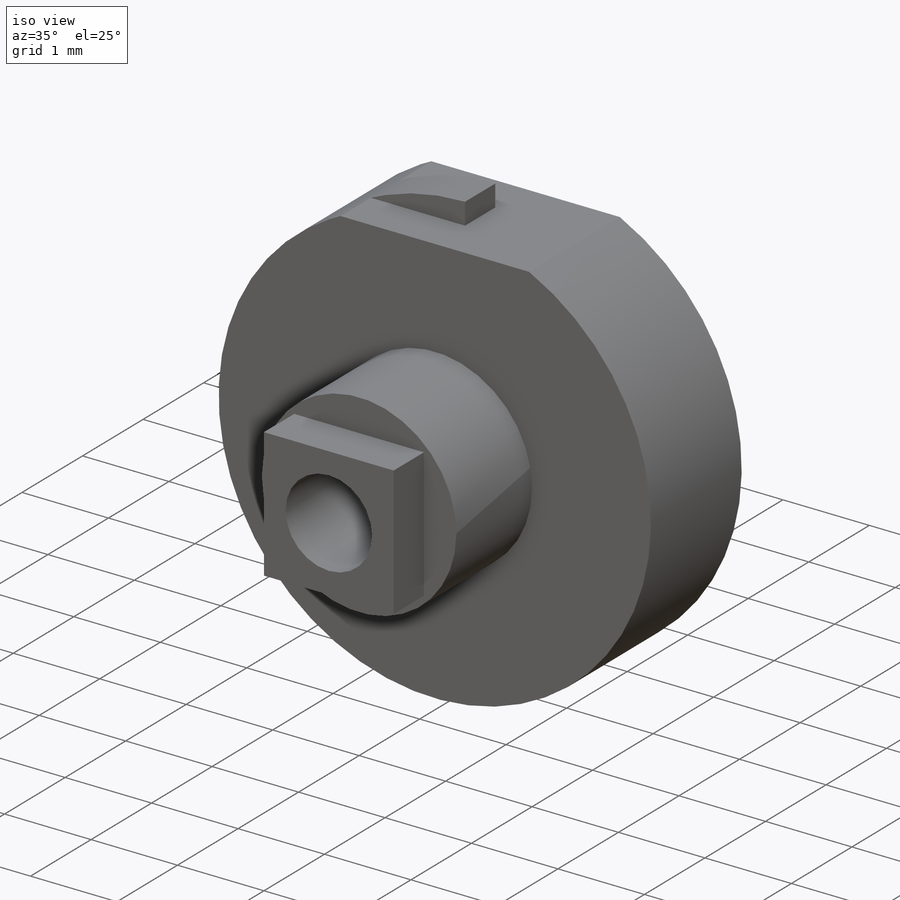
[diagram: iso view]
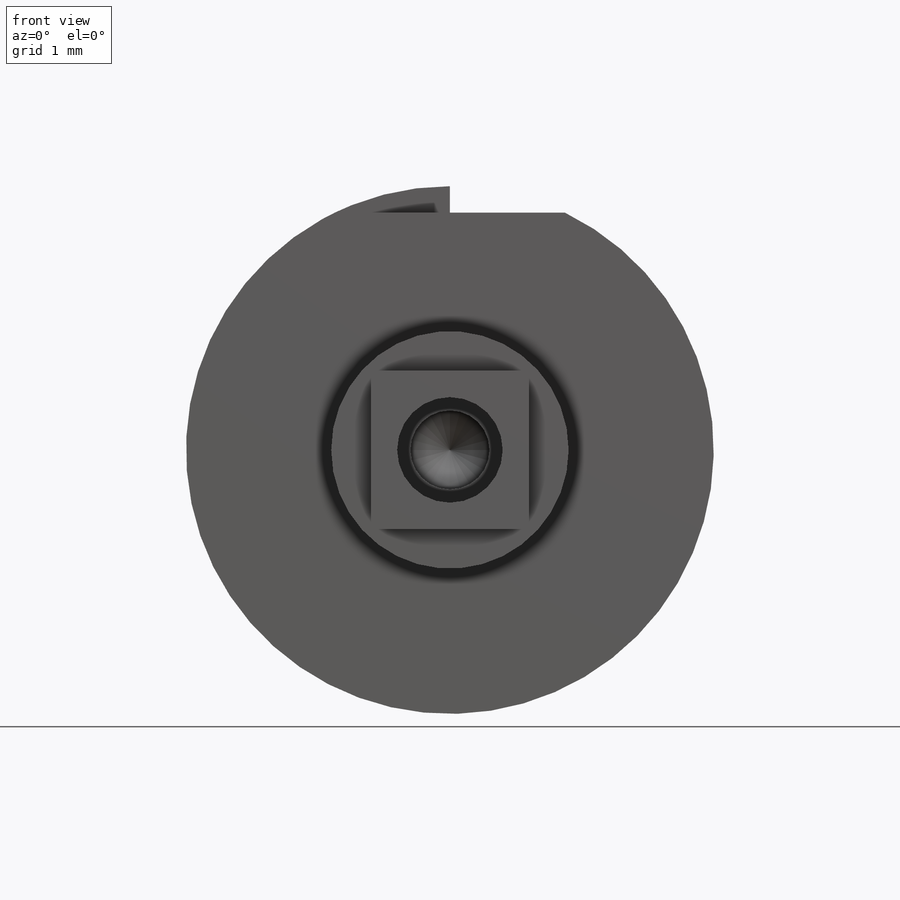
[diagram: front view]
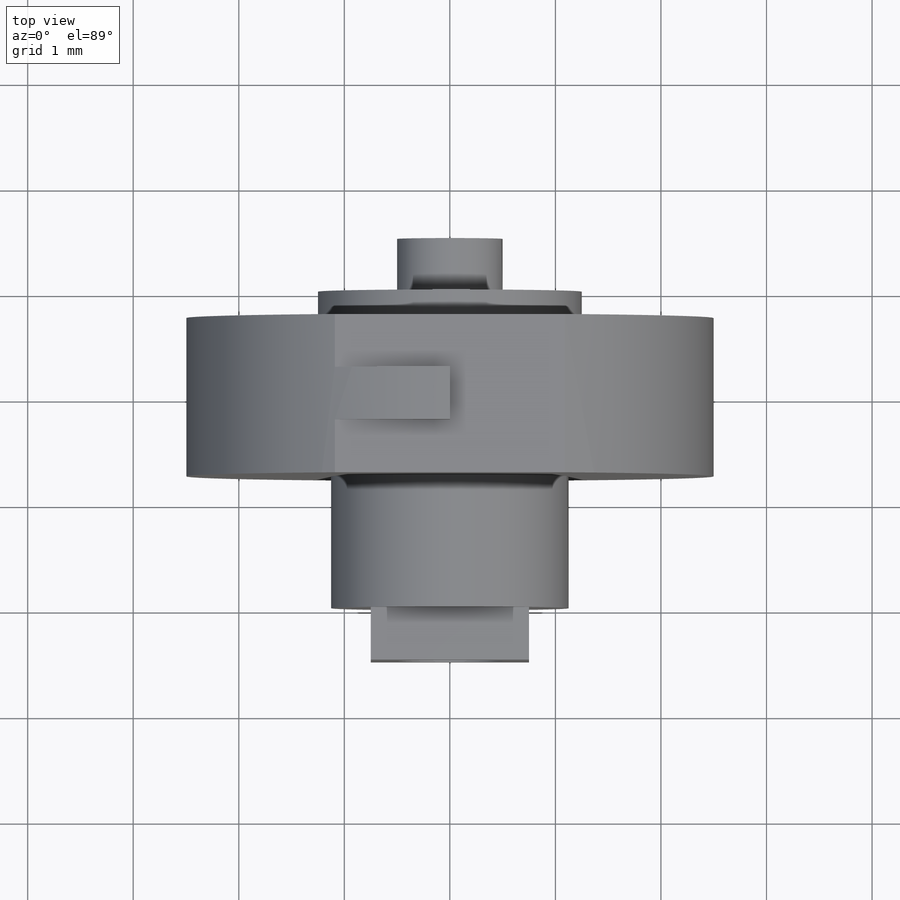
[diagram: top view]
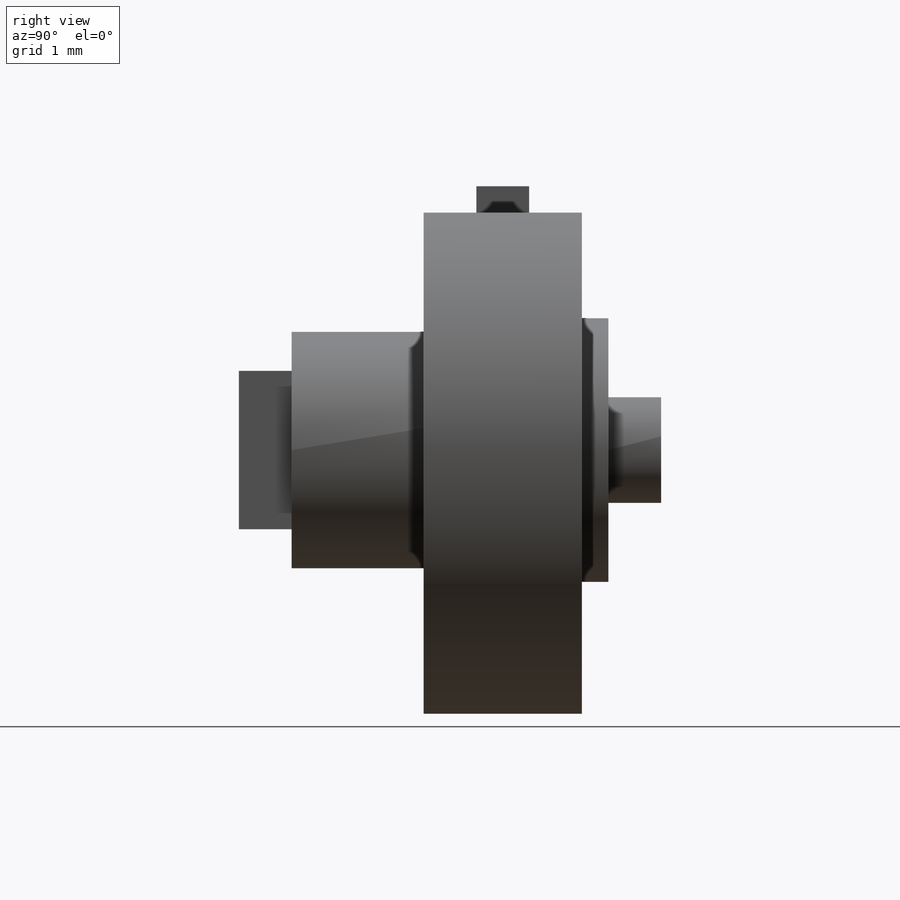
[diagram: right view]
SOLIDWORKS PART (.sldprt)
format: sldprt  version: not decoded by parser v0  size: 248,320 bytes
history: native  units: mm
features: sketch x8, extrude x5, plane x4, material x1, cut_extrude x1, hole x1 (+8 scaffold rows collapsed)
feature tree (28):
  scaffold x8  (default folders/planes/origin — collapsed)
  material  "Material <sin especificar>"
  plane  "Alzado"
  plane  "Planta"
  plane  "Vista lateral"
  sketch  "Croquis1"  dims[D1=1.5mm D2=1.5mm]
  extrude  "Saliente-Extruir1"  Depth=0.5mm
  sketch  "Croquis2"  dims[D1=2.25mm]
  extrude  "Saliente-Extruir2"  Depth=1.25mm
  sketch  "Croquis5"  dims[D1=5.0mm]
  extrude  "Saliente-Extruir5"  Depth=1.5mm
  sketch  "Croquis6"  dims[D1=2.5mm]
  extrude  "Saliente-Extruir6"  Depth=0.25mm
  sketch  "Croquis7"  dims[D1=1.0mm]
  extrude  "Saliente-Extruir7"  Depth=0.5mm
  plane  "Plano1"  Offset=2.25mm
  sketch  "Croquis11"  dims[D1=3.0mm D2=1.25mm D3=0.5mm D4=0.5mm]
  cut_extrude  "Cortar-Extruir1"  Depth=10mm
  hole  "Taladro roscado M1x0.251"  Depth=2.25mm  [1 undecoded]
  sketch  "Croquis10"
  sketch  "Croquis9"  dims[hole-wizard template sketch: 28 standard entries collapsed; hole parameters kept: c8.Diámetro de perforador para roscar=0.75mm c8.Profundidad de perforador para roscar=2.25mm c8.Diámetro mayor de rosca=1.0mm c8.Profundidad de rosca=2.0mm c8.D5=~14.816244mm c8.Ángulo de perforador=118.0deg]
decode coverage: 14 of 15 modeling features carry decoded parameters
note: ~ marks probable driven/reference dimensions
note: 1 parameter value undecoded
note: suppression state not decoded; provenance and decode notes live in map.json
